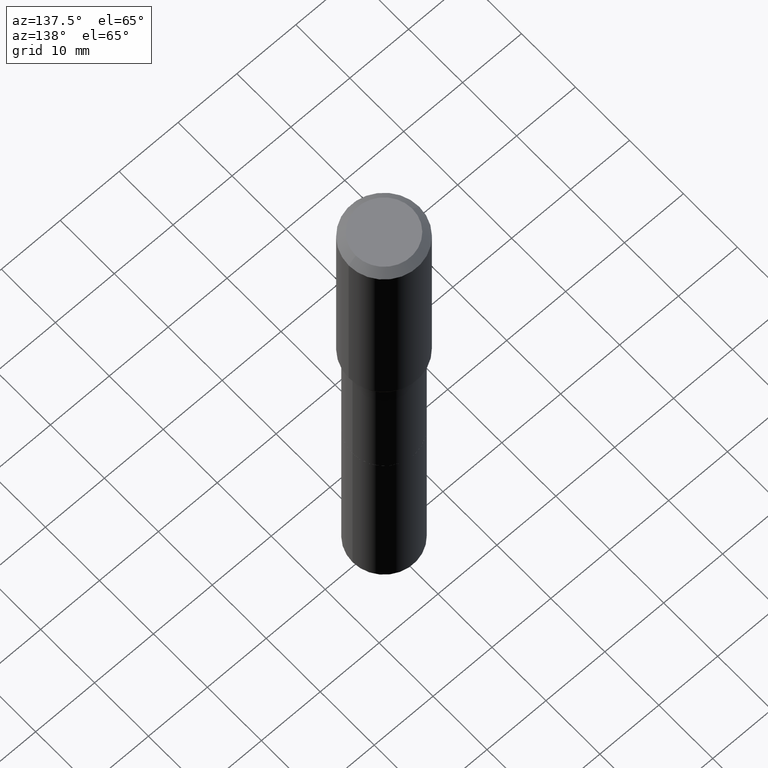
[diagram: clean part render]
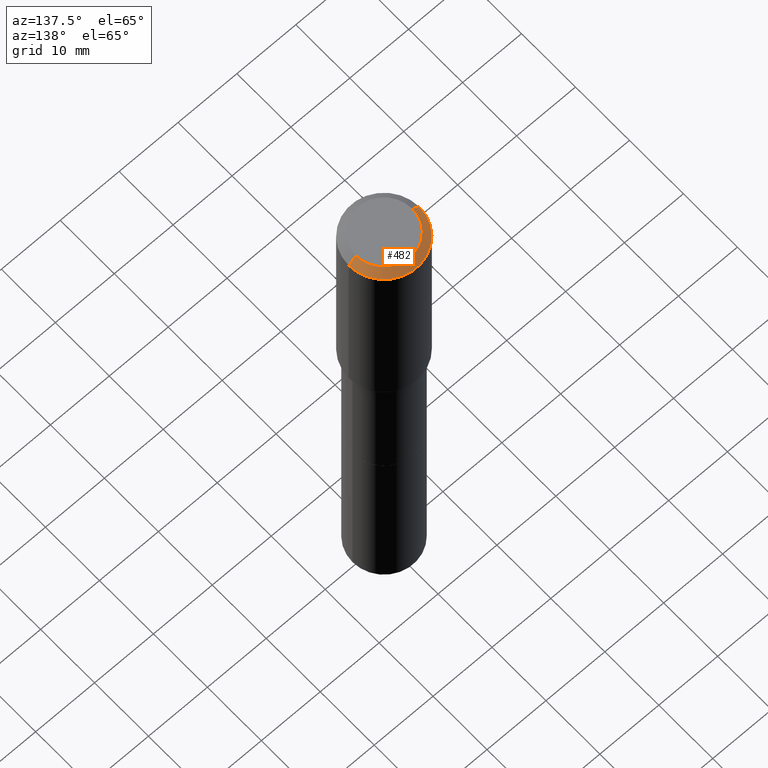
[diagram: same view with one face highlighted and labeled with its STEP entity id]
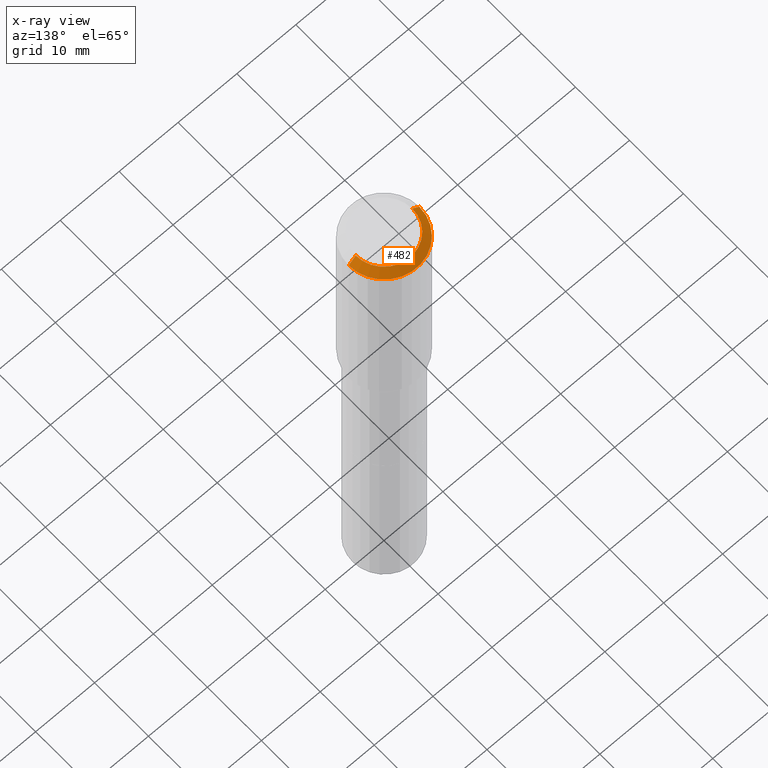
[diagram: x-ray of the same camera — body ghosted, the highlighted face saturated]
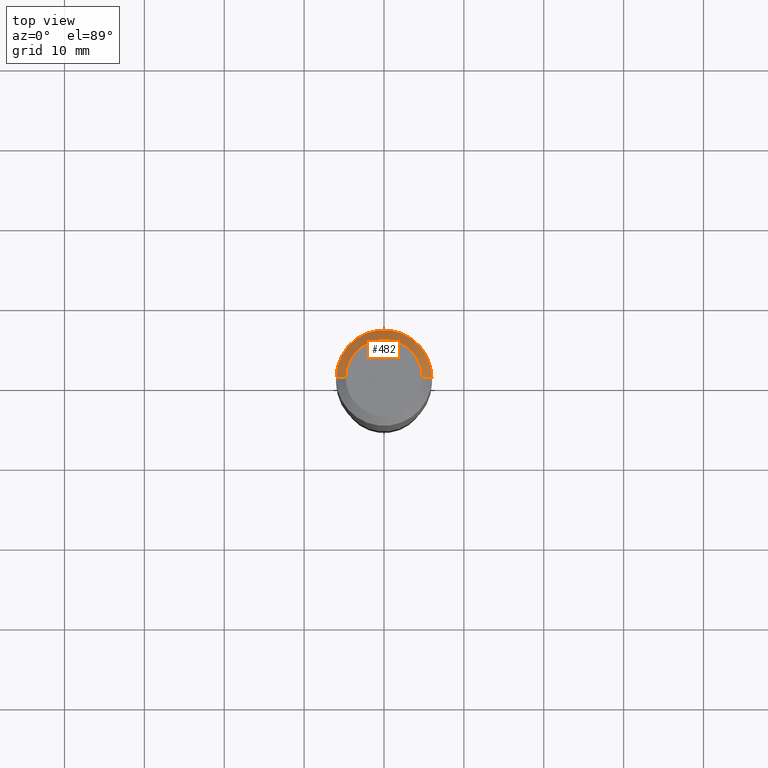
[diagram: same view with one face highlighted and labeled with its STEP entity id]
A machine part, auxiliary view. The second image highlights one B-rep face of the part: STEP entity #482.
The next image is the same camera in x-ray: the body ghosted, the highlighted face saturated — about 0% of this face is hidden behind the body in this view.
A second angle (top view) of the same face is appended — the face is thin or edge-on in the first view.
In plain terms, the highlighted conical surface has half-angle 45 deg.
Its self-contained STEP definition (entity closure, byte-faithful):
#15 = VERTEX_POINT ( 'NONE', #225 ) ;
#27 = DIRECTION ( 'NONE',  ( 1.000000000000000000, -6.982962677686266711E-15, 4.876185090822587894E-29 ) ) ;
#32 = DIRECTION ( 'NONE',  ( -2.445468806185136597E-29, 3.491481338843145583E-15, 1.000000000000000000 ) ) ;
#44 = VERTEX_POINT ( 'NONE', #221 ) ;
#54 = CARTESIAN_POINT ( 'NONE',  ( 1.155239464041865682E-30, -1.649375784469512105E-16, -0.04724000000000028870 ) ) ;
#71 = CIRCLE ( 'NONE', #293, 0.2361999999999999933 ) ;
#95 = FACE_OUTER_BOUND ( 'NONE', #258, .T. ) ;
#107 = LINE ( 'NONE', #266, #132 ) ;
#113 = CONICAL_SURFACE ( 'NONE', #323, 0.2361999999999999933, 0.7853981633974452814 ) ;
#125 = VERTEX_POINT ( 'NONE', #341 ) ;
#132 = VECTOR ( 'NONE', #424, 39.37007874015748143 ) ;
#145 = EDGE_CURVE ( 'NONE', #494, #44, #463, .T. ) ;
#178 = CARTESIAN_POINT ( 'NONE',  ( -0.1889600000000000168, 1.401969416799070942E-15, 3.855188123706346622E-18 ) ) ;
#182 = CARTESIAN_POINT ( 'NONE',  ( -0.2361999999999999933, 1.484438206022545019E-15, -0.04724000000000028870 ) ) ;
#199 = EDGE_CURVE ( 'NONE', #125, #494, #472, .T. ) ;
#209 = CARTESIAN_POINT ( 'NONE',  ( 1.155239464041865682E-30, -1.649375784469512105E-16, -0.04724000000000028870 ) ) ;
#221 = CARTESIAN_POINT ( 'NONE',  ( -0.2361999999999999933, -7.761218939778795629E-16, -0.04724000000000028870 ) ) ;
#225 = CARTESIAN_POINT ( 'NONE',  ( 0.2361999999999999933, -1.814313362916447440E-15, -0.04724000000000028870 ) ) ;
#251 = DIRECTION ( 'NONE',  ( 1.000000000000000000, -6.982962677686266711E-15, 0.000000000000000000 ) ) ;
#258 = EDGE_LOOP ( 'NONE', ( #336, #487, #349, #456 ) ) ;
#266 = CARTESIAN_POINT ( 'NONE',  ( 0.2361999999999999933, -1.785387205520586782E-15, -0.04724000000000028870 ) ) ;
#273 = DIRECTION ( 'NONE',  ( -0.7071067811865453523, 2.468850131082234184E-15, -0.7071067811865496822 ) ) ;
#293 = AXIS2_PLACEMENT_3D ( 'NONE', #209, #340, #251 ) ;
#323 = AXIS2_PLACEMENT_3D ( 'NONE', #54, #405, #495 ) ;
#336 = ORIENTED_EDGE ( 'NONE', *, *, #199, .F. ) ;
#340 = DIRECTION ( 'NONE',  ( -2.445468806185136597E-29, 3.491481338843145583E-15, 1.000000000000000000 ) ) ;
#341 = CARTESIAN_POINT ( 'NONE',  ( 0.1889600000000000168, -1.540873453589747738E-15, 3.855188123725863225E-18 ) ) ;
#349 = ORIENTED_EDGE ( 'NONE', *, *, #479, .T. ) ;
#385 = CARTESIAN_POINT ( 'NONE',  ( -9.427742298522546243E-47, 1.346031739168365344E-32, 3.855188123715862256E-18 ) ) ;
#391 = AXIS2_PLACEMENT_3D ( 'NONE', #385, #32, #27 ) ;
#405 = DIRECTION ( 'NONE',  ( 2.445468806185136597E-29, -3.491481338843145583E-15, -1.000000000000000000 ) ) ;
#424 = DIRECTION ( 'NONE',  ( 0.7071067811865453523, -7.319954787623248157E-15, -0.7071067811865496822 ) ) ;
#456 = ORIENTED_EDGE ( 'NONE', *, *, #145, .F. ) ;
#463 = LINE ( 'NONE', #182, #502 ) ;
#472 = CIRCLE ( 'NONE', #391, 0.1889600000000000168 ) ;
#479 = EDGE_CURVE ( 'NONE', #15, #44, #71, .T. ) ;
#482 = ADVANCED_FACE ( 'NONE', ( #95 ), #113, .T. ) ;
#487 = ORIENTED_EDGE ( 'NONE', *, *, #516, .T. ) ;
#494 = VERTEX_POINT ( 'NONE', #178 ) ;
#495 = DIRECTION ( 'NONE',  ( -1.000000000000000000, 6.982962677686266711E-15, 0.000000000000000000 ) ) ;
#502 = VECTOR ( 'NONE', #273, 39.37007874015748143 ) ;
#516 = EDGE_CURVE ( 'NONE', #125, #15, #107, .T. ) ;